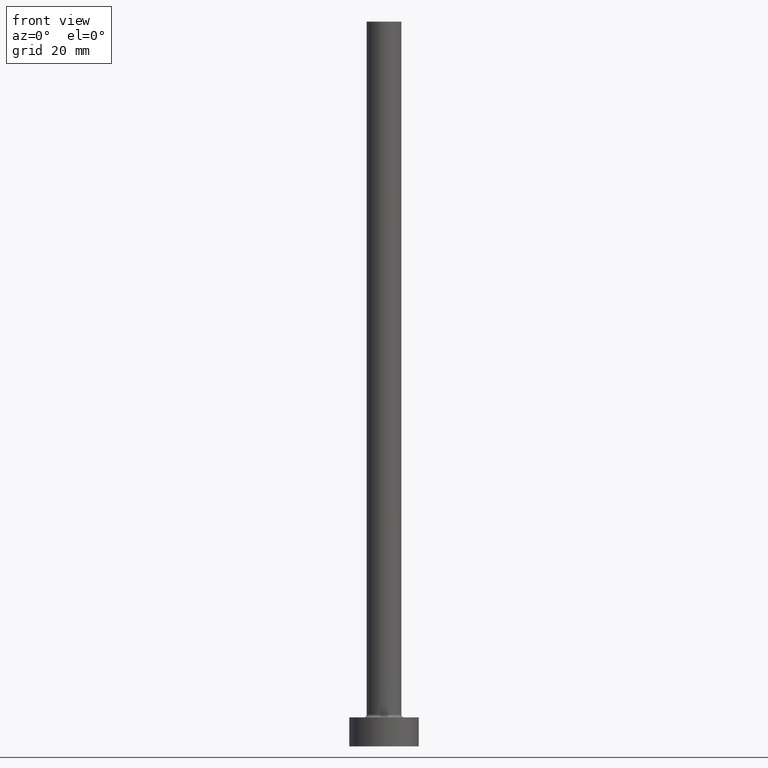
[diagram: clean part render]
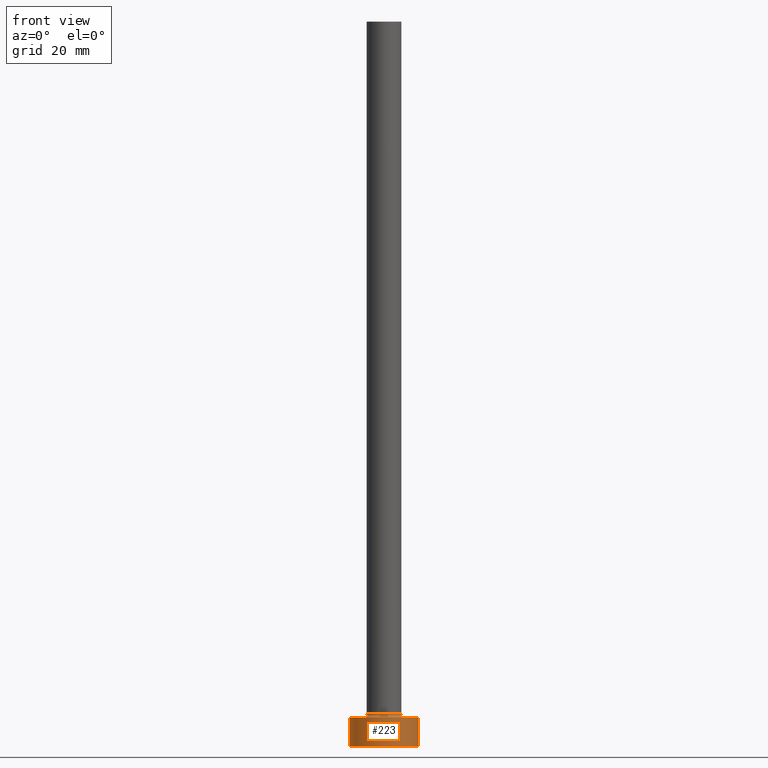
[diagram: same view with one face highlighted and labeled with its STEP entity id]
A machine part, front view. The second image highlights one B-rep face of the part: STEP entity #223.
In plain terms, the highlighted cylindrical surface (edge-blend (fillet) strip) has radius 6 mm, axis along (-0, -0, -1).
Its self-contained STEP definition (entity closure, byte-faithful):
#35 = CIRCLE ( 'NONE', #381, 6.000000000000000888 ) ;
#45 = CARTESIAN_POINT ( 'NONE',  ( 6.000000000000000888, 7.347880794884120722E-16, 0.000000000000000000 ) ) ;
#53 = DIRECTION ( 'NONE',  ( -0.000000000000000000, -0.000000000000000000, -1.000000000000000000 ) ) ;
#55 = EDGE_CURVE ( 'NONE', #337, #100, #198, .T. ) ;
#65 = CARTESIAN_POINT ( 'NONE',  ( -6.000000000000000888, 0.000000000000000000, 0.000000000000000000 ) ) ;
#66 = LINE ( 'NONE', #307, #360 ) ;
#81 = ORIENTED_EDGE ( 'NONE', *, *, #207, .F. ) ;
#88 = CARTESIAN_POINT ( 'NONE',  ( 0.000000000000000000, 0.000000000000000000, 0.000000000000000000 ) ) ;
#100 = VERTEX_POINT ( 'NONE', #358 ) ;
#112 = CYLINDRICAL_SURFACE ( 'NONE', #282, 6.000000000000000888 ) ;
#138 = DIRECTION ( 'NONE',  ( -0.000000000000000000, -0.000000000000000000, -1.000000000000000000 ) ) ;
#140 = DIRECTION ( 'NONE',  ( -1.000000000000000000, 0.000000000000000000, 0.000000000000000000 ) ) ;
#166 = VERTEX_POINT ( 'NONE', #65 ) ;
#171 = DIRECTION ( 'NONE',  ( 1.000000000000000000, 0.000000000000000000, 0.000000000000000000 ) ) ;
#186 = DIRECTION ( 'NONE',  ( 0.000000000000000000, 0.000000000000000000, 1.000000000000000000 ) ) ;
#198 = CIRCLE ( 'NONE', #457, 6.000000000000000888 ) ;
#207 = EDGE_CURVE ( 'NONE', #100, #264, #459, .T. ) ;
#223 = ADVANCED_FACE ( 'NONE', ( #461 ), #112, .T. ) ;
#259 = CARTESIAN_POINT ( 'NONE',  ( 0.000000000000000000, 0.000000000000000000, 5.000000000000000000 ) ) ;
#261 = CARTESIAN_POINT ( 'NONE',  ( -6.000000000000000888, 0.000000000000000000, 5.000000000000000000 ) ) ;
#264 = VERTEX_POINT ( 'NONE', #45 ) ;
#282 = AXIS2_PLACEMENT_3D ( 'NONE', #259, #138, #140 ) ;
#287 = CARTESIAN_POINT ( 'NONE',  ( 6.000000000000000888, 7.347880794884120722E-16, 5.000000000000000000 ) ) ;
#305 = DIRECTION ( 'NONE',  ( 1.000000000000000000, 0.000000000000000000, 0.000000000000000000 ) ) ;
#307 = CARTESIAN_POINT ( 'NONE',  ( -6.000000000000000888, 0.000000000000000000, 5.000000000000000000 ) ) ;
#312 = DIRECTION ( 'NONE',  ( 0.000000000000000000, 0.000000000000000000, 1.000000000000000000 ) ) ;
#318 = DIRECTION ( 'NONE',  ( -0.000000000000000000, -0.000000000000000000, -1.000000000000000000 ) ) ;
#337 = VERTEX_POINT ( 'NONE', #261 ) ;
#353 = EDGE_CURVE ( 'NONE', #166, #264, #35, .T. ) ;
#358 = CARTESIAN_POINT ( 'NONE',  ( 6.000000000000000888, 7.347880794884120722E-16, 5.000000000000000000 ) ) ;
#360 = VECTOR ( 'NONE', #53, 1000.000000000000000 ) ;
#367 = ORIENTED_EDGE ( 'NONE', *, *, #454, .T. ) ;
#381 = AXIS2_PLACEMENT_3D ( 'NONE', #88, #186, #305 ) ;
#413 = CARTESIAN_POINT ( 'NONE',  ( 0.000000000000000000, 0.000000000000000000, 5.000000000000000000 ) ) ;
#437 = VECTOR ( 'NONE', #318, 1000.000000000000000 ) ;
#438 = EDGE_LOOP ( 'NONE', ( #81, #456, #367, #440 ) ) ;
#440 = ORIENTED_EDGE ( 'NONE', *, *, #353, .T. ) ;
#454 = EDGE_CURVE ( 'NONE', #337, #166, #66, .T. ) ;
#456 = ORIENTED_EDGE ( 'NONE', *, *, #55, .F. ) ;
#457 = AXIS2_PLACEMENT_3D ( 'NONE', #413, #312, #171 ) ;
#459 = LINE ( 'NONE', #287, #437 ) ;
#461 = FACE_OUTER_BOUND ( 'NONE', #438, .T. ) ;